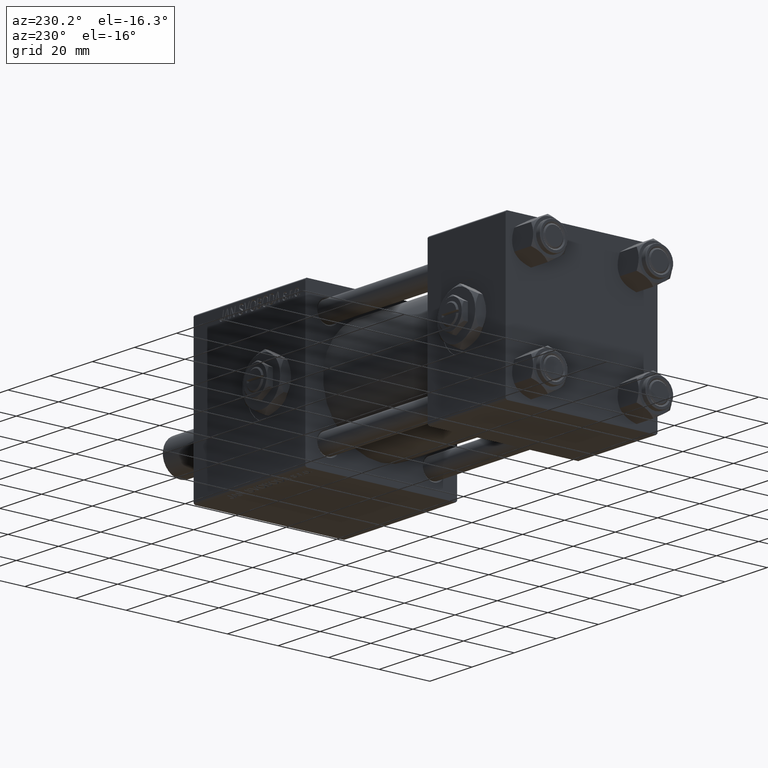
[diagram: clean part render]
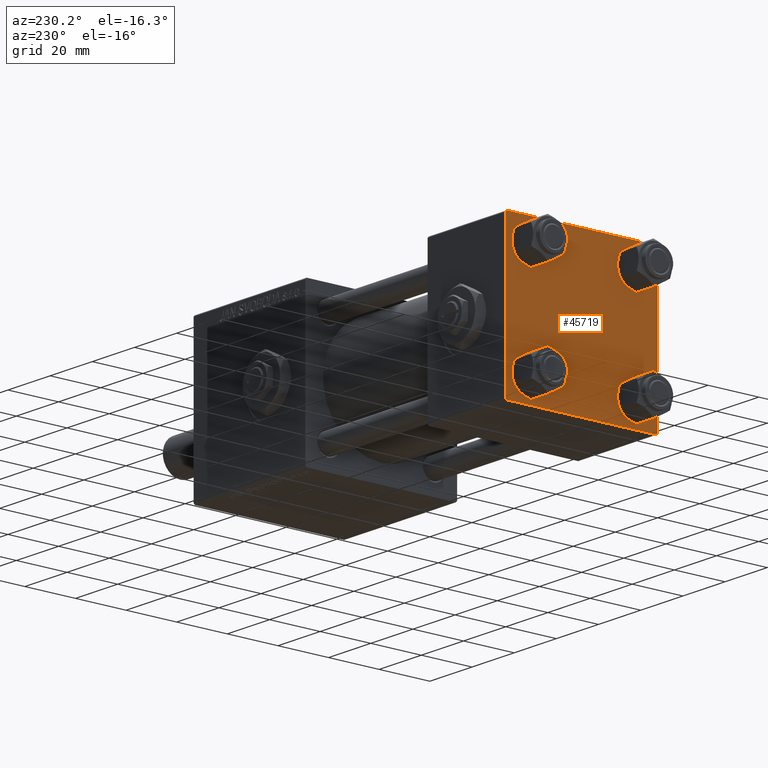
[diagram: same view with one face highlighted and labeled with its STEP entity id]
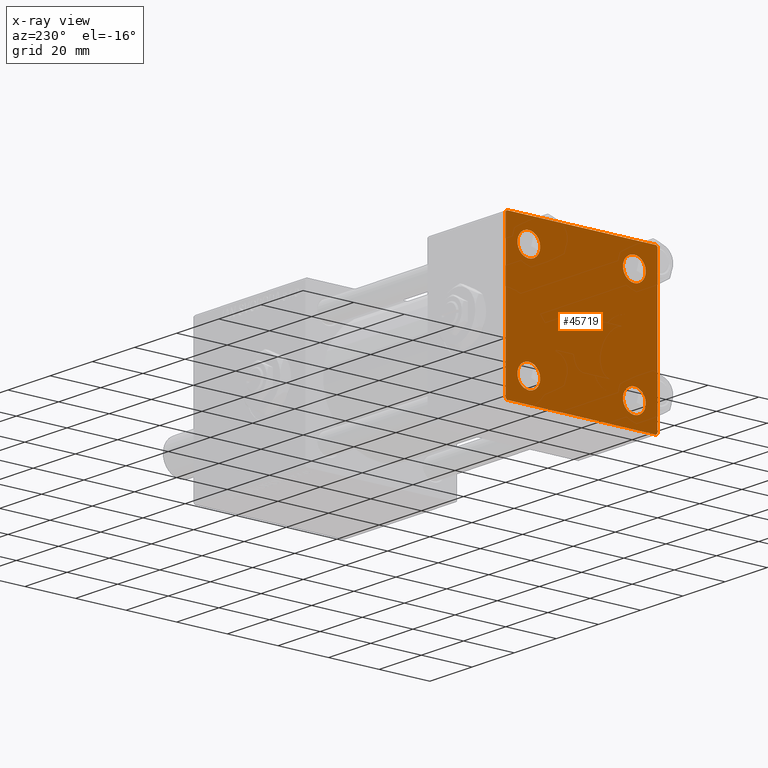
[diagram: x-ray of the same camera — body ghosted, the highlighted face saturated]
A machine part, auxiliary view. The second image highlights one B-rep face of the part: STEP entity #45719.
The next image is the same camera in x-ray: the body ghosted, the highlighted face saturated — about 0% of this face is hidden behind the body in this view.
In plain terms, the highlighted planar face has unit normal (-1, 0, 0).
Its self-contained STEP definition (entity closure, byte-faithful):
#146 = CIRCLE ( 'NONE', #28225, 4.500000000000017764 ) ;
#264 = ORIENTED_EDGE ( 'NONE', *, *, #48703, .T. ) ;
#608 = AXIS2_PLACEMENT_3D ( 'NONE', #13110, #16050, #32583 ) ;
#770 = ORIENTED_EDGE ( 'NONE', *, *, #8850, .T. ) ;
#1171 = LINE ( 'NONE', #13438, #41791 ) ;
#1294 = CARTESIAN_POINT ( 'NONE',  ( 0.000000000000000000, -30.00000000000000000, -29.50000000000001776 ) ) ;
#1507 = DIRECTION ( 'NONE',  ( 0.000000000000000000, 0.7071067811865474617, -0.7071067811865474617 ) ) ;
#1588 = LINE ( 'NONE', #1851, #44475 ) ;
#1645 = CIRCLE ( 'NONE', #29852, 4.500000000000017764 ) ;
#1692 = EDGE_LOOP ( 'NONE', ( #17622, #16510, #2019, #7434, #16193, #25027, #10613, #52247 ) ) ;
#1851 = CARTESIAN_POINT ( 'NONE',  ( 0.000000000000000000, 29.99999999999999289, 30.00000000000000000 ) ) ;
#2019 = ORIENTED_EDGE ( 'NONE', *, *, #32797, .T. ) ;
#2313 = CARTESIAN_POINT ( 'NONE',  ( 0.000000000000000000, 20.84999999999999787, 25.35000000000001918 ) ) ;
#2549 = FACE_BOUND ( 'NONE', #8586, .T. ) ;
#3954 = EDGE_CURVE ( 'NONE', #51224, #39148, #36263, .T. ) ;
#4027 = CARTESIAN_POINT ( 'NONE',  ( 0.000000000000000000, -20.84999999999999076, -20.85000000000000497 ) ) ;
#4267 = DIRECTION ( 'NONE',  ( 0.000000000000000000, -0.7071067811865474617, 0.7071067811865474617 ) ) ;
#5118 = EDGE_CURVE ( 'NONE', #15254, #43016, #13325, .T. ) ;
#5640 = DIRECTION ( 'NONE',  ( 0.000000000000000000, 0.000000000000000000, 1.000000000000000000 ) ) ;
#5750 = PLANE ( 'NONE',  #36920 ) ;
#6433 = CARTESIAN_POINT ( 'NONE',  ( 0.000000000000000000, -30.00000000000000000, 29.49999999999999289 ) ) ;
#6442 = AXIS2_PLACEMENT_3D ( 'NONE', #23222, #44032, #35230 ) ;
#7302 = DIRECTION ( 'NONE',  ( -0.000000000000000000, 0.7071067811865474617, 0.7071067811865474617 ) ) ;
#7361 = ORIENTED_EDGE ( 'NONE', *, *, #22288, .T. ) ;
#7434 = ORIENTED_EDGE ( 'NONE', *, *, #12746, .T. ) ;
#7458 = VERTEX_POINT ( 'NONE', #15834 ) ;
#8586 = EDGE_LOOP ( 'NONE', ( #51170, #30775 ) ) ;
#8850 = EDGE_CURVE ( 'NONE', #43126, #15993, #26124, .T. ) ;
#9066 = CARTESIAN_POINT ( 'NONE',  ( 0.000000000000000000, 29.74999999999957723, -29.75000000000040501 ) ) ;
#9076 = LINE ( 'NONE', #17336, #39933 ) ;
#9762 = VERTEX_POINT ( 'NONE', #17461 ) ;
#9939 = CIRCLE ( 'NONE', #42302, 4.500000000000017764 ) ;
#10021 = FACE_BOUND ( 'NONE', #41191, .T. ) ;
#10613 = ORIENTED_EDGE ( 'NONE', *, *, #17202, .F. ) ;
#11288 = CARTESIAN_POINT ( 'NONE',  ( 0.000000000000000000, -29.49999999999998579, 29.99999999999999289 ) ) ;
#12280 = CARTESIAN_POINT ( 'NONE',  ( 0.000000000000000000, -29.75000000000001066, -29.75000000000001066 ) ) ;
#12746 = EDGE_CURVE ( 'NONE', #40448, #16452, #33075, .T. ) ;
#13110 = CARTESIAN_POINT ( 'NONE',  ( 0.000000000000000000, -20.84999999999999076, -20.85000000000000497 ) ) ;
#13325 = CIRCLE ( 'NONE', #18436, 4.500000000000017764 ) ;
#13438 = CARTESIAN_POINT ( 'NONE',  ( 0.000000000000000000, 29.99999999999999289, 30.00000000000000000 ) ) ;
#13462 = EDGE_CURVE ( 'NONE', #7458, #9762, #24538, .T. ) ;
#14383 = AXIS2_PLACEMENT_3D ( 'NONE', #49079, #37065, #37585 ) ;
#14713 = CARTESIAN_POINT ( 'NONE',  ( 0.000000000000000000, -20.84999999999999076, 25.35000000000002274 ) ) ;
#15254 = VERTEX_POINT ( 'NONE', #14713 ) ;
#15834 = CARTESIAN_POINT ( 'NONE',  ( 0.000000000000000000, 29.99999999999999289, -29.50000000000000000 ) ) ;
#15993 = VERTEX_POINT ( 'NONE', #22261 ) ;
#16050 = DIRECTION ( 'NONE',  ( 1.000000000000000000, -0.000000000000000000, 0.000000000000000000 ) ) ;
#16193 = ORIENTED_EDGE ( 'NONE', *, *, #31173, .F. ) ;
#16452 = VERTEX_POINT ( 'NONE', #1294 ) ;
#16510 = ORIENTED_EDGE ( 'NONE', *, *, #13462, .T. ) ;
#17202 = EDGE_CURVE ( 'NONE', #37682, #30645, #1171, .T. ) ;
#17336 = CARTESIAN_POINT ( 'NONE',  ( 0.000000000000000000, -30.00000000000000000, 29.99999999999999289 ) ) ;
#17461 = CARTESIAN_POINT ( 'NONE',  ( 0.000000000000000000, 29.49999999999997868, -30.00000000000000000 ) ) ;
#17622 = ORIENTED_EDGE ( 'NONE', *, *, #38437, .T. ) ;
#18030 = FACE_OUTER_BOUND ( 'NONE', #1692, .T. ) ;
#18288 = FACE_BOUND ( 'NONE', #19803, .T. ) ;
#18436 = AXIS2_PLACEMENT_3D ( 'NONE', #32242, #28506, #33046 ) ;
#18504 = EDGE_CURVE ( 'NONE', #39148, #51224, #1645, .T. ) ;
#19415 = CARTESIAN_POINT ( 'NONE',  ( 0.000000000000000000, 29.99999999999999289, -30.00000000000000000 ) ) ;
#19803 = EDGE_LOOP ( 'NONE', ( #770, #49839 ) ) ;
#20544 = CARTESIAN_POINT ( 'NONE',  ( 0.000000000000000000, 29.49999999999999289, 30.00000000000000000 ) ) ;
#20929 = VERTEX_POINT ( 'NONE', #2313 ) ;
#21356 = DIRECTION ( 'NONE',  ( 1.000000000000000000, -0.000000000000000000, 0.000000000000000000 ) ) ;
#22261 = CARTESIAN_POINT ( 'NONE',  ( 0.000000000000000000, -20.84999999999999076, -25.35000000000002274 ) ) ;
#22280 = DIRECTION ( 'NONE',  ( -0.000000000000000000, 0.000000000000000000, 1.000000000000000000 ) ) ;
#22288 = EDGE_CURVE ( 'NONE', #38673, #20929, #9939, .T. ) ;
#23222 = CARTESIAN_POINT ( 'NONE',  ( 0.000000000000000000, 20.84999999999999787, -20.85000000000000142 ) ) ;
#23294 = CARTESIAN_POINT ( 'NONE',  ( -0.000000000000000000, -29.74999999999999645, 29.74999999999999645 ) ) ;
#23936 = DIRECTION ( 'NONE',  ( 0.000000000000000000, -1.000000000000000000, -1.156482317317871725E-16 ) ) ;
#23956 = CIRCLE ( 'NONE', #43565, 4.500000000000017764 ) ;
#24353 = CARTESIAN_POINT ( 'NONE',  ( 0.000000000000000000, 20.84999999999999787, -16.34999999999998366 ) ) ;
#24538 = LINE ( 'NONE', #9066, #24569 ) ;
#24569 = VECTOR ( 'NONE', #48821, 999.9999999999998863 ) ;
#25027 = ORIENTED_EDGE ( 'NONE', *, *, #48617, .T. ) ;
#26115 = DIRECTION ( 'NONE',  ( 0.000000000000000000, 0.000000000000000000, -1.000000000000000000 ) ) ;
#26124 = CIRCLE ( 'NONE', #608, 4.500000000000017764 ) ;
#26560 = CARTESIAN_POINT ( 'NONE',  ( 0.000000000000000000, 29.74999999999999645, 29.74999999999999645 ) ) ;
#26617 = CARTESIAN_POINT ( 'NONE',  ( 0.000000000000000000, 20.84999999999999787, -25.35000000000001918 ) ) ;
#28225 = AXIS2_PLACEMENT_3D ( 'NONE', #42204, #46711, #38982 ) ;
#28506 = DIRECTION ( 'NONE',  ( 1.000000000000000000, -0.000000000000000000, 0.000000000000000000 ) ) ;
#29852 = AXIS2_PLACEMENT_3D ( 'NONE', #42444, #34168, #5640 ) ;
#29884 = EDGE_LOOP ( 'NONE', ( #37895, #48247 ) ) ;
#30208 = DIRECTION ( 'NONE',  ( 0.000000000000000000, -1.000000000000000000, -1.156482317317871725E-16 ) ) ;
#30495 = VECTOR ( 'NONE', #4267, 1000.000000000000114 ) ;
#30552 = CIRCLE ( 'NONE', #14383, 4.500000000000017764 ) ;
#30645 = VERTEX_POINT ( 'NONE', #11288 ) ;
#30775 = ORIENTED_EDGE ( 'NONE', *, *, #32653, .T. ) ;
#31173 = EDGE_CURVE ( 'NONE', #31781, #16452, #9076, .T. ) ;
#31781 = VERTEX_POINT ( 'NONE', #6433 ) ;
#32242 = CARTESIAN_POINT ( 'NONE',  ( 0.000000000000000000, -20.84999999999999076, 20.85000000000000497 ) ) ;
#32583 = DIRECTION ( 'NONE',  ( 0.000000000000000000, 0.000000000000000000, 1.000000000000000000 ) ) ;
#32653 = EDGE_CURVE ( 'NONE', #43016, #15254, #30552, .T. ) ;
#32797 = EDGE_CURVE ( 'NONE', #9762, #40448, #48752, .T. ) ;
#32835 = DIRECTION ( 'NONE',  ( 0.000000000000000000, 0.000000000000000000, 1.000000000000000000 ) ) ;
#33046 = DIRECTION ( 'NONE',  ( 0.000000000000000000, 0.000000000000000000, 1.000000000000000000 ) ) ;
#33075 = LINE ( 'NONE', #12280, #30495 ) ;
#34168 = DIRECTION ( 'NONE',  ( 1.000000000000000000, -0.000000000000000000, 0.000000000000000000 ) ) ;
#34369 = DIRECTION ( 'NONE',  ( 0.000000000000000000, 0.000000000000000000, -1.000000000000000000 ) ) ;
#35230 = DIRECTION ( 'NONE',  ( 0.000000000000000000, 0.000000000000000000, 1.000000000000000000 ) ) ;
#35498 = DIRECTION ( 'NONE',  ( 1.000000000000000000, -0.000000000000000000, 0.000000000000000000 ) ) ;
#36263 = CIRCLE ( 'NONE', #6442, 4.500000000000017764 ) ;
#36539 = VECTOR ( 'NONE', #23936, 1000.000000000000000 ) ;
#36920 = AXIS2_PLACEMENT_3D ( 'NONE', #51621, #39341, #22280 ) ;
#37065 = DIRECTION ( 'NONE',  ( 1.000000000000000000, -0.000000000000000000, 0.000000000000000000 ) ) ;
#37585 = DIRECTION ( 'NONE',  ( 0.000000000000000000, 0.000000000000000000, 1.000000000000000000 ) ) ;
#37682 = VERTEX_POINT ( 'NONE', #20544 ) ;
#37895 = ORIENTED_EDGE ( 'NONE', *, *, #18504, .T. ) ;
#38038 = LINE ( 'NONE', #26560, #49802 ) ;
#38065 = CARTESIAN_POINT ( 'NONE',  ( 0.000000000000000000, 20.84999999999999787, 16.34999999999998366 ) ) ;
#38188 = CARTESIAN_POINT ( 'NONE',  ( 0.000000000000000000, -20.84999999999999076, 16.34999999999998721 ) ) ;
#38426 = VECTOR ( 'NONE', #7302, 1000.000000000000114 ) ;
#38437 = EDGE_CURVE ( 'NONE', #43460, #7458, #1588, .T. ) ;
#38673 = VERTEX_POINT ( 'NONE', #38065 ) ;
#38982 = DIRECTION ( 'NONE',  ( 0.000000000000000000, 0.000000000000000000, 1.000000000000000000 ) ) ;
#39148 = VERTEX_POINT ( 'NONE', #24353 ) ;
#39341 = DIRECTION ( 'NONE',  ( -1.000000000000000000, 0.000000000000000000, -0.000000000000000000 ) ) ;
#39933 = VECTOR ( 'NONE', #26115, 1000.000000000000000 ) ;
#40098 = LINE ( 'NONE', #23294, #38426 ) ;
#40448 = VERTEX_POINT ( 'NONE', #46626 ) ;
#41191 = EDGE_LOOP ( 'NONE', ( #264, #7361 ) ) ;
#41791 = VECTOR ( 'NONE', #30208, 1000.000000000000000 ) ;
#42204 = CARTESIAN_POINT ( 'NONE',  ( 0.000000000000000000, 20.84999999999999787, 20.85000000000000142 ) ) ;
#42302 = AXIS2_PLACEMENT_3D ( 'NONE', #51271, #35498, #43517 ) ;
#42444 = CARTESIAN_POINT ( 'NONE',  ( 0.000000000000000000, 20.84999999999999787, -20.85000000000000142 ) ) ;
#43016 = VERTEX_POINT ( 'NONE', #38188 ) ;
#43126 = VERTEX_POINT ( 'NONE', #47763 ) ;
#43460 = VERTEX_POINT ( 'NONE', #52182 ) ;
#43517 = DIRECTION ( 'NONE',  ( 0.000000000000000000, 0.000000000000000000, 1.000000000000000000 ) ) ;
#43565 = AXIS2_PLACEMENT_3D ( 'NONE', #4027, #21356, #32835 ) ;
#44032 = DIRECTION ( 'NONE',  ( 1.000000000000000000, -0.000000000000000000, 0.000000000000000000 ) ) ;
#44475 = VECTOR ( 'NONE', #34369, 1000.000000000000000 ) ;
#45719 = ADVANCED_FACE ( 'NONE', ( #2549, #18288, #46549, #10021, #18030 ), #5750, .T. ) ;
#46549 = FACE_BOUND ( 'NONE', #29884, .T. ) ;
#46626 = CARTESIAN_POINT ( 'NONE',  ( 0.000000000000000000, -29.50000000000000000, -30.00000000000000711 ) ) ;
#46711 = DIRECTION ( 'NONE',  ( 1.000000000000000000, -0.000000000000000000, 0.000000000000000000 ) ) ;
#47621 = EDGE_CURVE ( 'NONE', #37682, #43460, #38038, .T. ) ;
#47763 = CARTESIAN_POINT ( 'NONE',  ( 0.000000000000000000, -20.84999999999999076, -16.34999999999998721 ) ) ;
#48247 = ORIENTED_EDGE ( 'NONE', *, *, #3954, .T. ) ;
#48617 = EDGE_CURVE ( 'NONE', #31781, #30645, #40098, .T. ) ;
#48703 = EDGE_CURVE ( 'NONE', #20929, #38673, #146, .T. ) ;
#48752 = LINE ( 'NONE', #19415, #36539 ) ;
#48821 = DIRECTION ( 'NONE',  ( -0.000000000000000000, -0.7071067811865574537, -0.7071067811865376918 ) ) ;
#49052 = EDGE_CURVE ( 'NONE', #15993, #43126, #23956, .T. ) ;
#49079 = CARTESIAN_POINT ( 'NONE',  ( 0.000000000000000000, -20.84999999999999076, 20.85000000000000497 ) ) ;
#49802 = VECTOR ( 'NONE', #1507, 1000.000000000000114 ) ;
#49839 = ORIENTED_EDGE ( 'NONE', *, *, #49052, .T. ) ;
#51170 = ORIENTED_EDGE ( 'NONE', *, *, #5118, .T. ) ;
#51224 = VERTEX_POINT ( 'NONE', #26617 ) ;
#51271 = CARTESIAN_POINT ( 'NONE',  ( 0.000000000000000000, 20.84999999999999787, 20.85000000000000142 ) ) ;
#51621 = CARTESIAN_POINT ( 'NONE',  ( 0.000000000000000000, 0.000000000000000000, 0.000000000000000000 ) ) ;
#52182 = CARTESIAN_POINT ( 'NONE',  ( 0.000000000000000000, 29.99999999999999289, 29.50000000000000000 ) ) ;
#52247 = ORIENTED_EDGE ( 'NONE', *, *, #47621, .T. ) ;